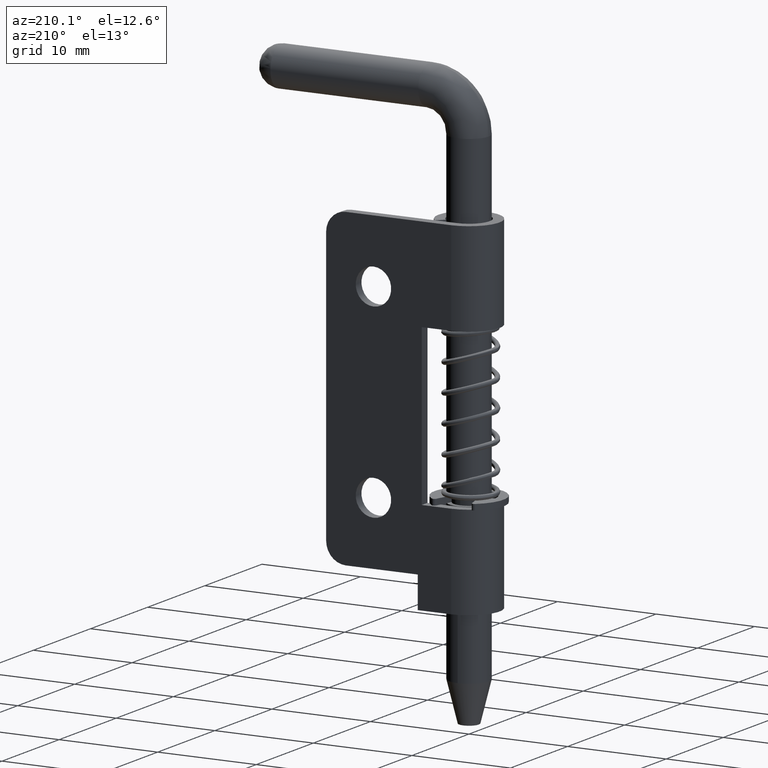
[diagram: clean part render]
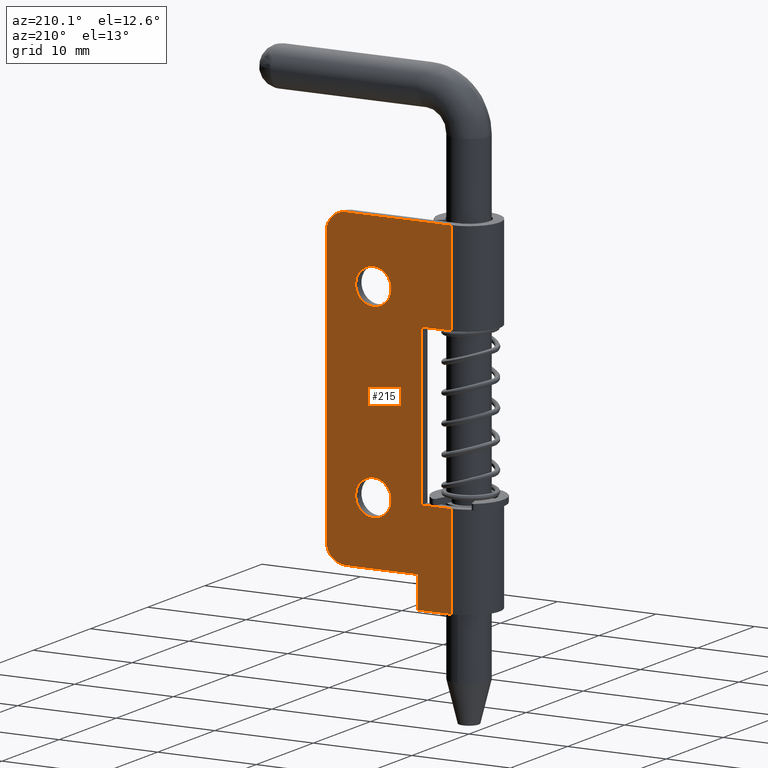
[diagram: same view with one face highlighted and labeled with its STEP entity id]
A machine part, auxiliary view. The second image highlights one B-rep face of the part: STEP entity #215.
In plain terms, the highlighted planar face has unit normal (0, 1, 0).
Its self-contained STEP definition (entity closure, byte-faithful):
#215=ADVANCED_FACE('',(#900,#901,#902),#899,.T.);
#899=PLANE('',#2989);
#900=FACE_OUTER_BOUND('',#2990,.T.);
#901=FACE_BOUND('',#2991,.T.);
#902=FACE_BOUND('',#2992,.T.);
#2986=CARTESIAN_POINT('',(1.39700000000E+01,3.09999999995E+00,-3.85000000000E+01));
#2987=DIRECTION('',(1.24777157110E-13,1.00000000000E+00,-0.00000000000E+00));
#2988=DIRECTION('',(-1.00000000000E+00,1.24777157110E-13,0.00000000000E+00));
#2989=AXIS2_PLACEMENT_3D('',#2986,#2987,#2988);
#2990=EDGE_LOOP('',(#3429,#3430,#3431,#3432,#3433,#3434,#3435,#3436,#3437,#3438,#3439,#3440));
#2991=EDGE_LOOP('',(#3441,#3442));
#2992=EDGE_LOOP('',(#3443,#3444));
#3429=ORIENTED_EDGE('',*,*,#3709,.T.);
#3430=ORIENTED_EDGE('',*,*,#3710,.T.);
#3431=ORIENTED_EDGE('',*,*,#3711,.T.);
#3432=ORIENTED_EDGE('',*,*,#3712,.T.);
#3433=ORIENTED_EDGE('',*,*,#3713,.F.);
#3434=ORIENTED_EDGE('',*,*,#3714,.F.);
#3435=ORIENTED_EDGE('',*,*,#3715,.T.);
#3436=ORIENTED_EDGE('',*,*,#3716,.F.);
#3437=ORIENTED_EDGE('',*,*,#3717,.F.);
#3438=ORIENTED_EDGE('',*,*,#3718,.F.);
#3439=ORIENTED_EDGE('',*,*,#3719,.T.);
#3440=ORIENTED_EDGE('',*,*,#3720,.T.);
#3441=ORIENTED_EDGE('',*,*,#3721,.F.);
#3442=ORIENTED_EDGE('',*,*,#3722,.F.);
#3443=ORIENTED_EDGE('',*,*,#3723,.F.);
#3444=ORIENTED_EDGE('',*,*,#3724,.F.);
#3709=EDGE_CURVE('',#4921,#4922,#4923,.T.);
#3710=EDGE_CURVE('',#4922,#4929,#4930,.T.);
#3711=EDGE_CURVE('',#4929,#4936,#4937,.T.);
#3712=EDGE_CURVE('',#4936,#4943,#4944,.T.);
#3713=EDGE_CURVE('',#4950,#4943,#4951,.T.);
#3714=EDGE_CURVE('',#4957,#4950,#4958,.T.);
#3715=EDGE_CURVE('',#4957,#4964,#4965,.T.);
#3716=EDGE_CURVE('',#4971,#4964,#4972,.T.);
#3717=EDGE_CURVE('',#4978,#4971,#4979,.T.);
#3718=EDGE_CURVE('',#4985,#4978,#4986,.T.);
#3719=EDGE_CURVE('',#4985,#4992,#4993,.T.);
#3720=EDGE_CURVE('',#4992,#4921,#4999,.T.);
#3721=EDGE_CURVE('',#5005,#5006,#5007,.T.);
#3722=EDGE_CURVE('',#5006,#5005,#5013,.T.);
#3723=EDGE_CURVE('',#5019,#5020,#5021,.T.);
#3724=EDGE_CURVE('',#5020,#5019,#5027,.T.);
#4921=VERTEX_POINT('',#6172);
#4922=VERTEX_POINT('',#6173);
#4923=LINE('',#6174,#6175);
#4929=VERTEX_POINT('',#6177);
#4930=CIRCLE('',#6181,2.00000000000E+00);
#4936=VERTEX_POINT('',#6182);
#4937=LINE('',#6183,#6184);
#4943=VERTEX_POINT('',#6186);
#4944=LINE('',#6187,#6188);
#4950=VERTEX_POINT('',#6190);
#4951=LINE('',#6191,#6192);
#4957=VERTEX_POINT('',#6194);
#4958=LINE('',#6195,#6196);
#4964=VERTEX_POINT('',#6198);
#4965=LINE('',#6199,#6200);
#4971=VERTEX_POINT('',#6202);
#4972=LINE('',#6203,#6204);
#4978=VERTEX_POINT('',#6206);
#4979=LINE('',#6207,#6208);
#4985=VERTEX_POINT('',#6210);
#4986=LINE('',#6211,#6212);
#4992=VERTEX_POINT('',#6214);
#4993=LINE('',#6215,#6216);
#4999=CIRCLE('',#6221,2.00000000000E+00);
#5005=VERTEX_POINT('',#6222);
#5006=VERTEX_POINT('',#6223);
#5007=CIRCLE('',#6227,1.80000000000E+00);
#5013=CIRCLE('',#6231,1.80000000000E+00);
#5019=VERTEX_POINT('',#6232);
#5020=VERTEX_POINT('',#6233);
#5021=CIRCLE('',#6237,1.80000000000E+00);
#5027=CIRCLE('',#6241,1.80000000000E+00);
#6172=CARTESIAN_POINT('',(1.27000000000E+01,3.09999999995E+00,-2.00000000000E+00));
#6173=CARTESIAN_POINT('',(1.27000000000E+01,3.09999999995E+00,-2.98000000000E+01));
#6174=CARTESIAN_POINT('',(1.27000000000E+01,3.09999999995E+00,-2.00000000000E+00));
#6175=VECTOR('',#6176,2.78000000000E+01);
#6176=DIRECTION('',(0.00000000000E+00,0.00000000000E+00,-1.00000000000E+00));
#6177=CARTESIAN_POINT('',(1.07000000000E+01,3.09999999995E+00,-3.18000000000E+01));
#6178=CARTESIAN_POINT('',(1.07000000000E+01,3.09999999996E+00,-2.98000000000E+01));
#6179=DIRECTION('',(1.24789067968E-13,1.00000000000E+00,0.00000000000E+00));
#6180=DIRECTION('',(-1.00000000000E+00,1.24789067968E-13,-0.00000000000E+00));
#6181=AXIS2_PLACEMENT_3D('',#6178,#6179,#6180);
#6182=CARTESIAN_POINT('',(3.39999999999E+00,3.09999999996E+00,-3.18000000000E+01));
#6183=CARTESIAN_POINT('',(1.07000000000E+01,3.09999999995E+00,-3.18000000000E+01));
#6184=VECTOR('',#6185,7.30000000001E+00);
#6185=DIRECTION('',(-1.00000000000E+00,1.36986312704E-12,0.00000000000E+00));
#6186=CARTESIAN_POINT('',(3.39999999999E+00,3.09999999996E+00,-3.50000000000E+01));
#6187=CARTESIAN_POINT('',(3.39999999999E+00,3.09999999996E+00,-3.18000000000E+01));
#6188=VECTOR('',#6189,3.20000000000E+00);
#6189=DIRECTION('',(0.00000000000E+00,0.00000000000E+00,-1.00000000000E+00));
#6190=CARTESIAN_POINT('',(-5.69460761595E-16,3.09999999995E+00,-3.50000000000E+01));
#6191=CARTESIAN_POINT('',(-5.69460761595E-16,3.09999999995E+00,-3.50000000000E+01));
#6192=VECTOR('',#6193,3.39999999999E+00);
#6193=DIRECTION('',(1.00000000000E+00,2.94117671395E-12,0.00000000000E+00));
#6194=CARTESIAN_POINT('',(-5.69460761595E-16,3.09999999995E+00,-2.55000000000E+01));
#6195=CARTESIAN_POINT('',(-5.69460761595E-16,3.09999999995E+00,-2.55000000000E+01));
#6196=VECTOR('',#6197,9.50000000000E+00);
#6197=DIRECTION('',(0.00000000000E+00,0.00000000000E+00,-1.00000000000E+00));
#6198=CARTESIAN_POINT('',(3.00000000003E+00,3.09999999995E+00,-2.55000000000E+01));
#6199=CARTESIAN_POINT('',(-5.69460761595E-16,3.09999999995E+00,-2.55000000000E+01));
#6200=VECTOR('',#6201,3.00000000003E+00);
#6201=DIRECTION('',(1.00000000000E+00,0.00000000000E+00,0.00000000000E+00));
#6202=CARTESIAN_POINT('',(3.00000000003E+00,3.09999999995E+00,-9.50000000000E+00));
#6203=CARTESIAN_POINT('',(3.00000000003E+00,3.09999999995E+00,-9.50000000000E+00));
#6204=VECTOR('',#6205,1.60000000000E+01);
#6205=DIRECTION('',(0.00000000000E+00,0.00000000000E+00,-1.00000000000E+00));
#6206=CARTESIAN_POINT('',(-5.69460761595E-16,3.09999999995E+00,-9.50000000000E+00));
#6207=CARTESIAN_POINT('',(-5.69460761595E-16,3.09999999995E+00,-9.50000000000E+00));
#6208=VECTOR('',#6209,3.00000000003E+00);
#6209=DIRECTION('',(1.00000000000E+00,0.00000000000E+00,0.00000000000E+00));
#6210=CARTESIAN_POINT('',(-5.69460761595E-16,3.09999999995E+00,0.00000000000E+00));
#6211=CARTESIAN_POINT('',(-5.69460761595E-16,3.09999999995E+00,0.00000000000E+00));
#6212=VECTOR('',#6213,9.50000000000E+00);
#6213=DIRECTION('',(0.00000000000E+00,0.00000000000E+00,-1.00000000000E+00));
#6214=CARTESIAN_POINT('',(1.07000000000E+01,3.09999999995E+00,0.00000000000E+00));
#6215=CARTESIAN_POINT('',(-5.69460761595E-16,3.09999999995E+00,0.00000000000E+00));
#6216=VECTOR('',#6217,1.07000000000E+01);
#6217=DIRECTION('',(1.00000000000E+00,0.00000000000E+00,0.00000000000E+00));
#6218=CARTESIAN_POINT('',(1.07000000000E+01,3.09999999995E+00,-2.00000000000E+00));
#6219=DIRECTION('',(1.24777157110E-13,1.00000000000E+00,-0.00000000000E+00));
#6220=DIRECTION('',(-0.00000000000E+00,-0.00000000000E+00,-1.00000000000E+00));
#6221=AXIS2_PLACEMENT_3D('',#6218,#6219,#6220);
#6222=CARTESIAN_POINT('',(7.90000009457E+00,3.09999999996E+00,-8.19999999987E+00));
#6223=CARTESIAN_POINT('',(7.89999018192E+00,3.09999999996E+00,-4.59999999990E+00));
#6224=CARTESIAN_POINT('',(7.89999999999E+00,3.09999999996E+00,-6.39999999987E+00));
#6225=DIRECTION('',(1.24777155767E-13,1.00000000000E+00,6.55634631747E-21));
#6226=DIRECTION('',(-5.45448333366E-06,6.74038570234E-19,9.99999999985E-01));
#6227=AXIS2_PLACEMENT_3D('',#6224,#6225,#6226);
#6228=CARTESIAN_POINT('',(7.89999999999E+00,3.09999999996E+00,-6.39999999987E+00));
#6229=DIRECTION('',(1.24777155767E-13,1.00000000000E+00,6.55634631747E-21));
#6230=DIRECTION('',(-5.45448333366E-06,6.74038570234E-19,9.99999999985E-01));
#6231=AXIS2_PLACEMENT_3D('',#6228,#6229,#6230);
#6232=CARTESIAN_POINT('',(7.90000009454E+00,3.09999999996E+00,-2.71999999999E+01));
#6233=CARTESIAN_POINT('',(7.89999018189E+00,3.09999999996E+00,-2.35999999999E+01));
#6234=CARTESIAN_POINT('',(7.89999999996E+00,3.09999999996E+00,-2.53999999999E+01));
#6235=DIRECTION('',(1.24777155767E-13,1.00000000000E+00,6.55634631747E-21));
#6236=DIRECTION('',(-5.45448333366E-06,6.74038570234E-19,9.99999999985E-01));
#6237=AXIS2_PLACEMENT_3D('',#6234,#6235,#6236);
#6238=CARTESIAN_POINT('',(7.89999999996E+00,3.09999999996E+00,-2.53999999999E+01));
#6239=DIRECTION('',(1.24777155767E-13,1.00000000000E+00,6.55634631747E-21));
#6240=DIRECTION('',(-5.45448333366E-06,6.74038570234E-19,9.99999999985E-01));
#6241=AXIS2_PLACEMENT_3D('',#6238,#6239,#6240);